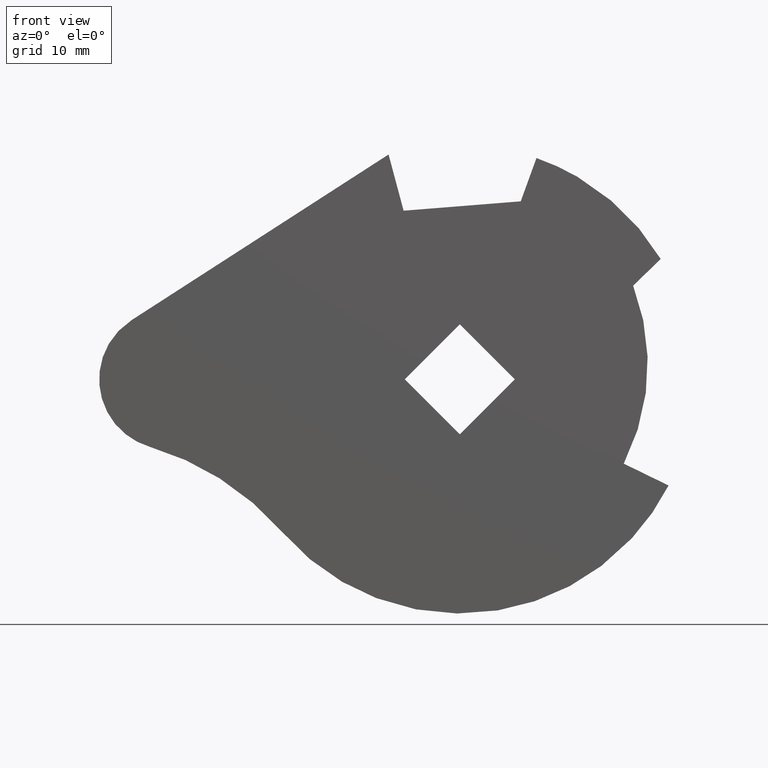
[diagram: clean part render]
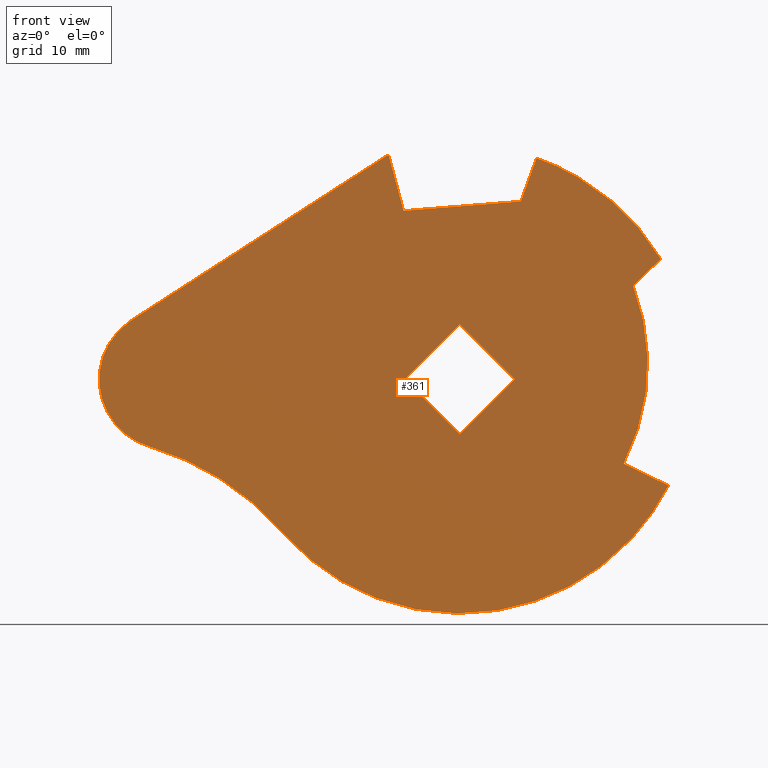
[diagram: same view with one face highlighted and labeled with its STEP entity id]
A machine part, front view. The second image highlights one B-rep face of the part: STEP entity #361.
In plain terms, the highlighted face is a freeform B-spline surface patch.
Its self-contained STEP definition (entity closure, byte-faithful):
#203=CARTESIAN_POINT('',(-41.535127349591320,-2.0,26.447485419626780));
#204=CARTESIAN_POINT('',(25.319943420083320,-2.0,26.447485419626780));
#205=CARTESIAN_POINT('',(-41.535127349591320,-2.0,-27.446195734419138));
#206=CARTESIAN_POINT('',(25.319943420083320,-2.0,-27.446195734419138));
#207=B_SPLINE_SURFACE_WITH_KNOTS('',1,1,((#203,#205),(#204,#206)),.UNSPECIFIED.,.F.,.F.,.U.,(2,2),(2,2),(0.0,66.855070769674640),(0.0,53.893681154045922),.UNSPECIFIED.);
#208=CARTESIAN_POINT('',(-18.912305335812551,-2.0,-16.349430156952501));
#209=VERTEX_POINT('',#208);
#210=CARTESIAN_POINT('',(-33.121543283682698,-2.0,-7.193419501498741));
#211=VERTEX_POINT('',#210);
#212=CARTESIAN_POINT('',(-18.912305335812551,-2.0,-16.349430156952501));
#213=CARTESIAN_POINT('',(-24.672926693730464,-2.0,-9.685671257501392));
#214=CARTESIAN_POINT('',(-33.121543283682698,-2.0,-7.193419501498741));
#222=(BOUNDED_CURVE()B_SPLINE_CURVE(2,(#212,#213,#214),.UNSPECIFIED.,.F.,.U.)CURVE()GEOMETRIC_REPRESENTATION_ITEM()QUASI_UNIFORM_CURVE()RATIONAL_B_SPLINE_CURVE((1.0,0.959505779183390,1.0))REPRESENTATION_ITEM(''));
#223=EDGE_CURVE('',#209,#211,#222,.T.);
#224=ORIENTED_EDGE('',*,*,#223,.F.);
#225=CARTESIAN_POINT('',(22.283837975185001,-2.0,-11.332720992581740));
#226=VERTEX_POINT('',#225);
#227=CARTESIAN_POINT('',(-18.912305335812562,-2.0,-16.349430156952501));
#228=CARTESIAN_POINT('',(-10.200774324168949,-2.000000000000000,-26.426735799385476));
#229=CARTESIAN_POINT('',(3.022309094434244,-2.0,-24.816479148257720));
#230=CARTESIAN_POINT('',(16.245392513037434,-2.000000000000000,-23.206222497129971));
#231=CARTESIAN_POINT('',(22.283837975185001,-2.0,-11.332720992581750));
#239=(BOUNDED_CURVE()B_SPLINE_CURVE(2,(#227,#228,#229,#230,#231),.UNSPECIFIED.,.F.,.U.)B_SPLINE_CURVE_WITH_KNOTS((3,2,3),(0.0,0.500000000000000,1.0),.UNSPECIFIED.)CURVE()GEOMETRIC_REPRESENTATION_ITEM()RATIONAL_B_SPLINE_CURVE((1.0,0.882534954793417,1.0,0.882534954793417,1.0))REPRESENTATION_ITEM(''));
#240=EDGE_CURVE('',#209,#226,#239,.T.);
#241=ORIENTED_EDGE('',*,*,#240,.T.);
#242=CARTESIAN_POINT('',(17.500414805350200,-2.0,-9.000202269632389));
#243=VERTEX_POINT('',#242);
#244=CARTESIAN_POINT('',(17.500414805350200,-2.0,-9.000202269632389));
#245=CARTESIAN_POINT('',(22.283837975185001,-2.0,-11.332720992581740));
#246=QUASI_UNIFORM_CURVE('',1,(#244,#245),.UNSPECIFIED.,.F.,.U.);
#247=EDGE_CURVE('',#243,#226,#246,.T.);
#248=ORIENTED_EDGE('',*,*,#247,.F.);
#249=CARTESIAN_POINT('',(18.500357144043949,-2.0,10.000344786956999));
#250=VERTEX_POINT('',#249);
#251=CARTESIAN_POINT('',(17.500414805350200,-2.0,-9.000202269632394));
#252=CARTESIAN_POINT('',(22.241226133301584,-2.000000000000000,0.276888441157541));
#253=CARTESIAN_POINT('',(18.500357144043939,-2.0,10.000344786956990));
#261=(BOUNDED_CURVE()B_SPLINE_CURVE(2,(#251,#252,#253),.UNSPECIFIED.,.F.,.U.)CURVE()GEOMETRIC_REPRESENTATION_ITEM()QUASI_UNIFORM_CURVE()RATIONAL_B_SPLINE_CURVE((1.0,0.913150525690982,1.0))REPRESENTATION_ITEM(''));
#262=EDGE_CURVE('',#243,#250,#261,.T.);
#263=ORIENTED_EDGE('',*,*,#262,.T.);
#264=CARTESIAN_POINT('',(21.447462022705601,-2.0,12.845480636574161));
#265=VERTEX_POINT('',#264);
#266=CARTESIAN_POINT('',(21.447462022705601,-2.0,12.845480636574161));
#267=CARTESIAN_POINT('',(18.500357144043949,-2.0,10.000344786956999));
#268=QUASI_UNIFORM_CURVE('',1,(#266,#267),.UNSPECIFIED.,.F.,.U.);
#269=EDGE_CURVE('',#265,#250,#268,.T.);
#270=ORIENTED_EDGE('',*,*,#269,.F.);
#271=CARTESIAN_POINT('',(8.182980201324261,-2.0,23.622845616579198));
#272=VERTEX_POINT('',#271);
#273=CARTESIAN_POINT('',(21.447462022705590,-2.0,12.845480636574150));
#274=CARTESIAN_POINT('',(16.775225539792963,-2.000000000000000,20.646482199960836));
#275=CARTESIAN_POINT('',(8.182980201324261,-2.0,23.622845616579209));
#283=(BOUNDED_CURVE()B_SPLINE_CURVE(2,(#273,#274,#275),.UNSPECIFIED.,.F.,.U.)CURVE()GEOMETRIC_REPRESENTATION_ITEM()QUASI_UNIFORM_CURVE()RATIONAL_B_SPLINE_CURVE((1.0,0.939766338213495,1.0))REPRESENTATION_ITEM(''));
#284=EDGE_CURVE('',#265,#272,#283,.T.);
#285=ORIENTED_EDGE('',*,*,#284,.T.);
#286=CARTESIAN_POINT('',(6.500000000000000,-2.0,19.0));
#287=VERTEX_POINT('',#286);
#288=CARTESIAN_POINT('',(6.500000000000000,-2.0,19.0));
#289=CARTESIAN_POINT('',(8.182980201324261,-2.0,23.622845616579198));
#290=QUASI_UNIFORM_CURVE('',1,(#288,#289),.UNSPECIFIED.,.F.,.U.);
#291=EDGE_CURVE('',#287,#272,#290,.T.);
#292=ORIENTED_EDGE('',*,*,#291,.F.);
#293=CARTESIAN_POINT('',(-6.0,-2.0,18.0));
#294=VERTEX_POINT('',#293);
#295=CARTESIAN_POINT('',(-6.0,-2.0,18.0));
#296=CARTESIAN_POINT('',(6.500000000000000,-2.0,19.0));
#297=QUASI_UNIFORM_CURVE('',1,(#295,#296),.UNSPECIFIED.,.F.,.U.);
#298=EDGE_CURVE('',#294,#287,#297,.T.);
#299=ORIENTED_EDGE('',*,*,#298,.F.);
#300=CARTESIAN_POINT('',(-7.607000000000000,-2.0,24.0));
#301=VERTEX_POINT('',#300);
#302=CARTESIAN_POINT('',(-7.607000000000000,-2.0,24.0));
#303=CARTESIAN_POINT('',(-6.0,-2.0,18.0));
#304=QUASI_UNIFORM_CURVE('',1,(#302,#303),.UNSPECIFIED.,.F.,.U.);
#305=EDGE_CURVE('',#301,#294,#304,.T.);
#306=ORIENTED_EDGE('',*,*,#305,.F.);
#307=CARTESIAN_POINT('',(-35.029268839974250,-2.0,6.325740479597029));
#308=VERTEX_POINT('',#307);
#309=CARTESIAN_POINT('',(-35.029268839974250,-2.0,6.325740479597029));
#310=CARTESIAN_POINT('',(-7.607000000000000,-2.0,24.0));
#311=QUASI_UNIFORM_CURVE('',1,(#309,#310),.UNSPECIFIED.,.F.,.U.);
#312=EDGE_CURVE('',#308,#301,#311,.T.);
#313=ORIENTED_EDGE('',*,*,#312,.F.);
#314=CARTESIAN_POINT('',(-35.029268839974250,-2.0,6.325740479597032));
#315=CARTESIAN_POINT('',(-39.100513541276328,-2.000000000000000,3.732095857407590));
#316=CARTESIAN_POINT('',(-38.426014233238163,-2.0,-1.047765702046671));
#317=CARTESIAN_POINT('',(-37.751514925199984,-2.000000000000000,-5.827627261500933));
#318=CARTESIAN_POINT('',(-33.121543283682698,-2.0,-7.193419501498741));
#326=(BOUNDED_CURVE()B_SPLINE_CURVE(2,(#314,#315,#316,#317,#318),.UNSPECIFIED.,.F.,.U.)B_SPLINE_CURVE_WITH_KNOTS((3,2,3),(0.0,0.500000000000000,1.0),.UNSPECIFIED.)CURVE()GEOMETRIC_REPRESENTATION_ITEM()RATIONAL_B_SPLINE_CURVE((1.0,0.840886149082069,1.0,0.840886149082069,1.0))REPRESENTATION_ITEM(''));
#327=EDGE_CURVE('',#308,#211,#326,.T.);
#328=ORIENTED_EDGE('',*,*,#327,.T.);
#329=EDGE_LOOP('',(#224,#241,#248,#263,#270,#285,#292,#299,#306,#313,#328));
#330=FACE_OUTER_BOUND('',#329,.T.);
#331=CARTESIAN_POINT('',(0.0,-2.0,-5.868999999999900));
#332=VERTEX_POINT('',#331);
#333=CARTESIAN_POINT('',(-5.869000000000000,-2.0,0.0));
#334=VERTEX_POINT('',#333);
#335=CARTESIAN_POINT('',(0.0,-2.0,-5.868999999999900));
#336=CARTESIAN_POINT('',(-5.869000000000000,-2.0,0.0));
#337=QUASI_UNIFORM_CURVE('',1,(#335,#336),.UNSPECIFIED.,.F.,.U.);
#338=EDGE_CURVE('',#332,#334,#337,.T.);
#339=ORIENTED_EDGE('',*,*,#338,.T.);
#340=CARTESIAN_POINT('',(0.0,-2.0,5.869000000000100));
#341=VERTEX_POINT('',#340);
#342=CARTESIAN_POINT('',(-5.869000000000000,-2.0,0.0));
#343=CARTESIAN_POINT('',(0.0,-2.0,5.869000000000100));
#344=QUASI_UNIFORM_CURVE('',1,(#342,#343),.UNSPECIFIED.,.F.,.U.);
#345=EDGE_CURVE('',#334,#341,#344,.T.);
#346=ORIENTED_EDGE('',*,*,#345,.T.);
#347=CARTESIAN_POINT('',(5.869000000000000,-2.0,0.0));
#348=VERTEX_POINT('',#347);
#349=CARTESIAN_POINT('',(0.0,-2.0,5.869000000000100));
#350=CARTESIAN_POINT('',(5.869000000000000,-2.0,0.0));
#351=QUASI_UNIFORM_CURVE('',1,(#349,#350),.UNSPECIFIED.,.F.,.U.);
#352=EDGE_CURVE('',#341,#348,#351,.T.);
#353=ORIENTED_EDGE('',*,*,#352,.T.);
#354=CARTESIAN_POINT('',(5.869000000000000,-2.0,0.0));
#355=CARTESIAN_POINT('',(0.0,-2.0,-5.868999999999900));
#356=QUASI_UNIFORM_CURVE('',1,(#354,#355),.UNSPECIFIED.,.F.,.U.);
#357=EDGE_CURVE('',#348,#332,#356,.T.);
#358=ORIENTED_EDGE('',*,*,#357,.T.);
#359=EDGE_LOOP('',(#339,#346,#353,#358));
#360=FACE_BOUND('',#359,.T.);
#361=ADVANCED_FACE('',(#330,#360),#207,.F.);